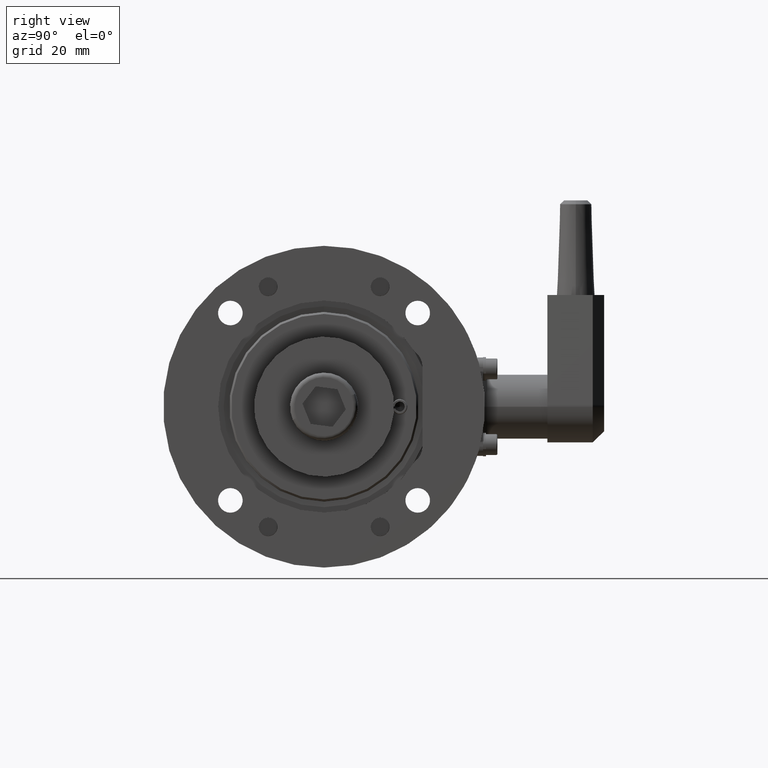
[diagram: clean part render]
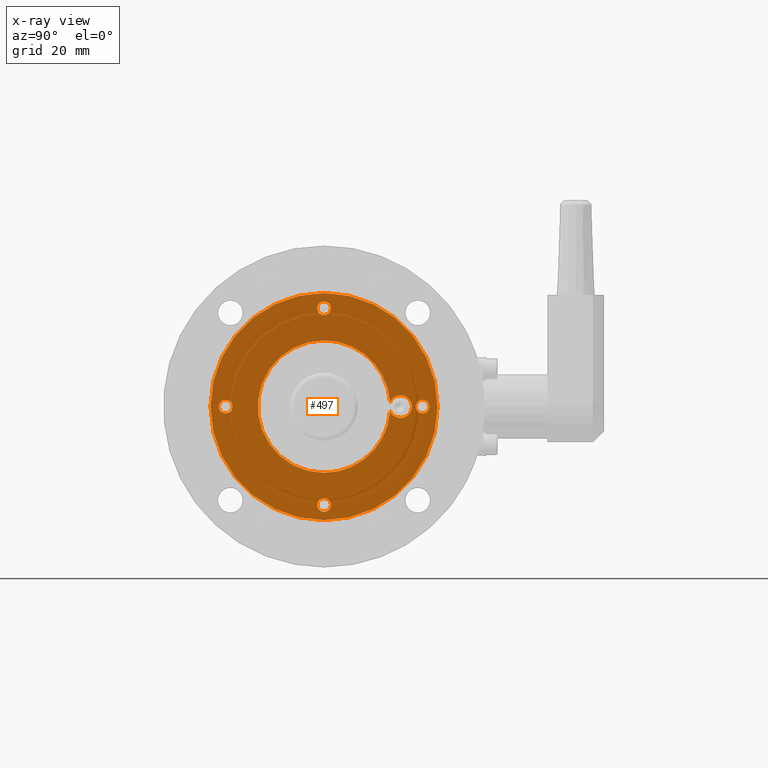
[diagram: x-ray — body ghosted, one internal face saturated and labeled with its STEP entity id]
A machine part, right view, then the same camera in x-ray: the body is ghosted and one INTERNAL B-rep face — a face not visible from any outside direction — is saturated and labeled: STEP entity #497.
In plain terms, the highlighted planar face has unit normal (1, 0, 0).
Its self-contained STEP definition (entity closure, byte-faithful):
#35 = DIRECTION ( 'NONE',  ( 0.000000000000000000, 0.000000000000000000, -1.000000000000000000 ) ) ;
#148 = ORIENTED_EDGE ( 'NONE', *, *, #18148, .T. ) ;
#186 = CARTESIAN_POINT ( 'NONE',  ( 0.000000000000000000, 17.50000000000000000, 0.000000000000000000 ) ) ;
#430 = DIRECTION ( 'NONE',  ( 0.000000000000000000, 0.000000000000000000, 1.000000000000000000 ) ) ;
#489 = VERTEX_POINT ( 'NONE', #9639 ) ;
#497 = ADVANCED_FACE ( 'NONE', ( #3996, #5245, #15908, #17128, #19366, #15167 ), #4779, .F. ) ;
#606 = CIRCLE ( 'NONE', #5256, 2.999999999999999112 ) ;
#640 = CARTESIAN_POINT ( 'NONE',  ( 0.000000000000000000, -26.00000000000000355, 0.000000000000000000 ) ) ;
#722 = ORIENTED_EDGE ( 'NONE', *, *, #19125, .F. ) ;
#994 = CARTESIAN_POINT ( 'NONE',  ( 0.000000000000000000, 2.143131898507868248E-15, -17.50000000000000000 ) ) ;
#1165 = EDGE_LOOP ( 'NONE', ( #14066, #14082 ) ) ;
#1253 = AXIS2_PLACEMENT_3D ( 'NONE', #5867, #4471, #11012 ) ;
#1288 = CARTESIAN_POINT ( 'NONE',  ( 0.000000000000000000, 20.19570283221615981, 0.000000000000000000 ) ) ;
#1314 = CARTESIAN_POINT ( 'NONE',  ( 0.000000000000000000, 26.00000000000000355, 0.000000000000000000 ) ) ;
#1500 = CARTESIAN_POINT ( 'NONE',  ( 0.000000000000000000, 26.00000000000000355, 0.000000000000000000 ) ) ;
#1726 = DIRECTION ( 'NONE',  ( 0.000000000000000000, 0.000000000000000000, -1.000000000000000000 ) ) ;
#1731 = AXIS2_PLACEMENT_3D ( 'NONE', #12156, #10340, #10621 ) ;
#1809 = AXIS2_PLACEMENT_3D ( 'NONE', #1500, #18991, #35 ) ;
#2247 = DIRECTION ( 'NONE',  ( 0.000000000000000000, 0.000000000000000000, -1.000000000000000000 ) ) ;
#2281 = AXIS2_PLACEMENT_3D ( 'NONE', #6590, #16215, #1726 ) ;
#2416 = CARTESIAN_POINT ( 'NONE',  ( 0.000000000000000000, 26.00000000000000355, 1.799999999999999600 ) ) ;
#2501 = CIRCLE ( 'NONE', #11639, 30.00000000000000000 ) ;
#2682 = VERTEX_POINT ( 'NONE', #20534 ) ;
#2931 = DIRECTION ( 'NONE',  ( 0.000000000000000000, 0.000000000000000000, 1.000000000000000000 ) ) ;
#2981 = EDGE_CURVE ( 'NONE', #9560, #489, #20022, .T. ) ;
#3113 = CIRCLE ( 'NONE', #8897, 1.799999999999999600 ) ;
#3540 = ORIENTED_EDGE ( 'NONE', *, *, #11018, .T. ) ;
#3607 = DIRECTION ( 'NONE',  ( 1.000000000000000000, -0.000000000000000000, -0.000000000000000000 ) ) ;
#3647 = EDGE_CURVE ( 'NONE', #8325, #7480, #11370, .T. ) ;
#3970 = DIRECTION ( 'NONE',  ( 0.000000000000000000, 0.000000000000000000, 1.000000000000000000 ) ) ;
#3996 = FACE_OUTER_BOUND ( 'NONE', #10942, .T. ) ;
#4257 = CARTESIAN_POINT ( 'NONE',  ( 0.000000000000000000, 17.45709022224231788, 1.224745268409818566 ) ) ;
#4409 = ORIENTED_EDGE ( 'NONE', *, *, #14678, .T. ) ;
#4471 = DIRECTION ( 'NONE',  ( 1.000000000000000000, -0.000000000000000000, -0.000000000000000000 ) ) ;
#4485 = CARTESIAN_POINT ( 'NONE',  ( 0.000000000000000000, 0.000000000000000000, 0.000000000000000000 ) ) ;
#4721 = AXIS2_PLACEMENT_3D ( 'NONE', #1314, #9292, #12451 ) ;
#4779 = PLANE ( 'NONE',  #17757 ) ;
#4795 = AXIS2_PLACEMENT_3D ( 'NONE', #11723, #3607, #2247 ) ;
#4838 = DIRECTION ( 'NONE',  ( 1.000000000000000000, 0.000000000000000000, 0.000000000000000000 ) ) ;
#4864 = AXIS2_PLACEMENT_3D ( 'NONE', #5266, #19597, #19450 ) ;
#5076 = DIRECTION ( 'NONE',  ( -1.000000000000000000, -0.000000000000000000, -0.000000000000000000 ) ) ;
#5102 = DIRECTION ( 'NONE',  ( -1.000000000000000000, -0.000000000000000000, -0.000000000000000000 ) ) ;
#5143 = CIRCLE ( 'NONE', #1809, 1.799999999999999600 ) ;
#5245 = FACE_BOUND ( 'NONE', #1165, .T. ) ;
#5256 = AXIS2_PLACEMENT_3D ( 'NONE', #7852, #15737, #6327 ) ;
#5266 = CARTESIAN_POINT ( 'NONE',  ( 0.000000000000000000, 0.000000000000000000, 0.000000000000000000 ) ) ;
#5297 = ORIENTED_EDGE ( 'NONE', *, *, #6760, .F. ) ;
#5318 = EDGE_CURVE ( 'NONE', #12058, #7541, #5812, .T. ) ;
#5377 = EDGE_CURVE ( 'NONE', #13000, #15594, #9529, .T. ) ;
#5437 = DIRECTION ( 'NONE',  ( 0.000000000000000000, 0.000000000000000000, -1.000000000000000000 ) ) ;
#5812 = CIRCLE ( 'NONE', #17320, 2.999999999999999112 ) ;
#5867 = CARTESIAN_POINT ( 'NONE',  ( 0.000000000000000000, 0.000000000000000000, -26.00000000000000355 ) ) ;
#6129 = CIRCLE ( 'NONE', #4795, 1.799999999999999600 ) ;
#6327 = DIRECTION ( 'NONE',  ( 0.000000000000000000, 0.000000000000000000, 1.000000000000000000 ) ) ;
#6590 = CARTESIAN_POINT ( 'NONE',  ( 0.000000000000000000, 0.000000000000000000, -26.00000000000000355 ) ) ;
#6760 = EDGE_CURVE ( 'NONE', #9354, #9564, #9991, .T. ) ;
#7396 = CARTESIAN_POINT ( 'NONE',  ( 0.000000000000000000, -26.00000000000000355, -1.799999999999999600 ) ) ;
#7438 = AXIS2_PLACEMENT_3D ( 'NONE', #1288, #7690, #15707 ) ;
#7480 = VERTEX_POINT ( 'NONE', #12391 ) ;
#7541 = VERTEX_POINT ( 'NONE', #12732 ) ;
#7664 = CIRCLE ( 'NONE', #2281, 1.799999999999999600 ) ;
#7690 = DIRECTION ( 'NONE',  ( -1.000000000000000000, -0.000000000000000000, -0.000000000000000000 ) ) ;
#7852 = CARTESIAN_POINT ( 'NONE',  ( 0.000000000000000000, 20.19570283221615981, 0.000000000000000000 ) ) ;
#7854 = CIRCLE ( 'NONE', #1731, 17.50000000000000000 ) ;
#7863 = DIRECTION ( 'NONE',  ( 0.000000000000000000, 0.000000000000000000, -1.000000000000000000 ) ) ;
#7939 = ORIENTED_EDGE ( 'NONE', *, *, #10451, .T. ) ;
#7943 = EDGE_CURVE ( 'NONE', #7541, #11349, #20076, .T. ) ;
#7951 = CIRCLE ( 'NONE', #4721, 1.799999999999999600 ) ;
#8105 = DIRECTION ( 'NONE',  ( 0.000000000000000000, 0.000000000000000000, -1.000000000000000000 ) ) ;
#8240 = CARTESIAN_POINT ( 'NONE',  ( 0.000000000000000000, 20.19570283221615981, 2.999999999999999112 ) ) ;
#8325 = VERTEX_POINT ( 'NONE', #20140 ) ;
#8423 = EDGE_CURVE ( 'NONE', #15132, #13563, #7951, .T. ) ;
#8703 = DIRECTION ( 'NONE',  ( 0.000000000000000000, 0.000000000000000000, -1.000000000000000000 ) ) ;
#8897 = AXIS2_PLACEMENT_3D ( 'NONE', #19039, #14086, #7863 ) ;
#9037 = ORIENTED_EDGE ( 'NONE', *, *, #8423, .T. ) ;
#9292 = DIRECTION ( 'NONE',  ( 1.000000000000000000, -0.000000000000000000, -0.000000000000000000 ) ) ;
#9354 = VERTEX_POINT ( 'NONE', #16461 ) ;
#9489 = CARTESIAN_POINT ( 'NONE',  ( 0.000000000000000000, 3.673940397442059178E-15, -30.00000000000000000 ) ) ;
#9526 = CARTESIAN_POINT ( 'NONE',  ( 0.000000000000000000, 26.00000000000000355, -1.799999999999999600 ) ) ;
#9529 = CIRCLE ( 'NONE', #14544, 1.799999999999999600 ) ;
#9560 = VERTEX_POINT ( 'NONE', #7396 ) ;
#9564 = VERTEX_POINT ( 'NONE', #4257 ) ;
#9639 = CARTESIAN_POINT ( 'NONE',  ( 0.000000000000000000, -26.00000000000000355, 1.799999999999999600 ) ) ;
#9731 = CIRCLE ( 'NONE', #15710, 17.50000000000000000 ) ;
#9991 = CIRCLE ( 'NONE', #13917, 17.50000000000000000 ) ;
#10302 = CARTESIAN_POINT ( 'NONE',  ( 0.000000000000000000, 0.000000000000000000, 26.00000000000000355 ) ) ;
#10340 = DIRECTION ( 'NONE',  ( -1.000000000000000000, -0.000000000000000000, -0.000000000000000000 ) ) ;
#10451 = EDGE_CURVE ( 'NONE', #13807, #2682, #15833, .T. ) ;
#10616 = ORIENTED_EDGE ( 'NONE', *, *, #3647, .T. ) ;
#10621 = DIRECTION ( 'NONE',  ( 0.000000000000000000, 0.000000000000000000, 1.000000000000000000 ) ) ;
#10942 = EDGE_LOOP ( 'NONE', ( #4409, #7939 ) ) ;
#11012 = DIRECTION ( 'NONE',  ( 0.000000000000000000, 0.000000000000000000, -1.000000000000000000 ) ) ;
#11018 = EDGE_CURVE ( 'NONE', #13563, #15132, #5143, .T. ) ;
#11212 = EDGE_CURVE ( 'NONE', #489, #9560, #3113, .T. ) ;
#11349 = VERTEX_POINT ( 'NONE', #12932 ) ;
#11370 = CIRCLE ( 'NONE', #1253, 1.799999999999999600 ) ;
#11473 = EDGE_LOOP ( 'NONE', ( #9037, #3540 ) ) ;
#11521 = CARTESIAN_POINT ( 'NONE',  ( 0.000000000000000000, 0.000000000000000000, 0.000000000000000000 ) ) ;
#11631 = EDGE_CURVE ( 'NONE', #11349, #16817, #7854, .T. ) ;
#11639 = AXIS2_PLACEMENT_3D ( 'NONE', #17737, #5076, #430 ) ;
#11723 = CARTESIAN_POINT ( 'NONE',  ( 0.000000000000000000, 0.000000000000000000, 26.00000000000000355 ) ) ;
#11779 = CARTESIAN_POINT ( 'NONE',  ( 0.000000000000000000, 20.19570283221615981, 0.000000000000000000 ) ) ;
#12058 = VERTEX_POINT ( 'NONE', #8240 ) ;
#12156 = CARTESIAN_POINT ( 'NONE',  ( 0.000000000000000000, 0.000000000000000000, 0.000000000000000000 ) ) ;
#12391 = CARTESIAN_POINT ( 'NONE',  ( 0.000000000000000000, 2.204364238465233111E-16, -24.20000000000000284 ) ) ;
#12402 = ORIENTED_EDGE ( 'NONE', *, *, #7943, .F. ) ;
#12451 = DIRECTION ( 'NONE',  ( 0.000000000000000000, 0.000000000000000000, -1.000000000000000000 ) ) ;
#12732 = CARTESIAN_POINT ( 'NONE',  ( 0.000000000000000000, 20.19570283221615981, -2.999999999999999112 ) ) ;
#12932 = CARTESIAN_POINT ( 'NONE',  ( 0.000000000000000000, 17.45709022224230722, -1.224745268409795917 ) ) ;
#13000 = VERTEX_POINT ( 'NONE', #13943 ) ;
#13214 = EDGE_CURVE ( 'NONE', #7480, #8325, #7664, .T. ) ;
#13563 = VERTEX_POINT ( 'NONE', #2416 ) ;
#13732 = EDGE_CURVE ( 'NONE', #16817, #9354, #9731, .T. ) ;
#13807 = VERTEX_POINT ( 'NONE', #9489 ) ;
#13917 = AXIS2_PLACEMENT_3D ( 'NONE', #4485, #15561, #2931 ) ;
#13943 = CARTESIAN_POINT ( 'NONE',  ( 0.000000000000000000, 0.000000000000000000, 24.20000000000000284 ) ) ;
#14066 = ORIENTED_EDGE ( 'NONE', *, *, #2981, .T. ) ;
#14082 = ORIENTED_EDGE ( 'NONE', *, *, #11212, .T. ) ;
#14086 = DIRECTION ( 'NONE',  ( 1.000000000000000000, -0.000000000000000000, -0.000000000000000000 ) ) ;
#14121 = EDGE_LOOP ( 'NONE', ( #10616, #20533 ) ) ;
#14238 = AXIS2_PLACEMENT_3D ( 'NONE', #640, #18207, #5437 ) ;
#14544 = AXIS2_PLACEMENT_3D ( 'NONE', #10302, #14993, #8703 ) ;
#14678 = EDGE_CURVE ( 'NONE', #2682, #13807, #2501, .T. ) ;
#14809 = ORIENTED_EDGE ( 'NONE', *, *, #13732, .F. ) ;
#14993 = DIRECTION ( 'NONE',  ( 1.000000000000000000, -0.000000000000000000, -0.000000000000000000 ) ) ;
#15132 = VERTEX_POINT ( 'NONE', #9526 ) ;
#15167 = FACE_BOUND ( 'NONE', #19165, .T. ) ;
#15561 = DIRECTION ( 'NONE',  ( -1.000000000000000000, -0.000000000000000000, -0.000000000000000000 ) ) ;
#15594 = VERTEX_POINT ( 'NONE', #20138 ) ;
#15707 = DIRECTION ( 'NONE',  ( 0.000000000000000000, 0.000000000000000000, 1.000000000000000000 ) ) ;
#15710 = AXIS2_PLACEMENT_3D ( 'NONE', #11521, #5102, #17398 ) ;
#15737 = DIRECTION ( 'NONE',  ( -1.000000000000000000, -0.000000000000000000, -0.000000000000000000 ) ) ;
#15757 = ORIENTED_EDGE ( 'NONE', *, *, #11631, .F. ) ;
#15833 = CIRCLE ( 'NONE', #4864, 30.00000000000000000 ) ;
#15908 = FACE_BOUND ( 'NONE', #14121, .T. ) ;
#16215 = DIRECTION ( 'NONE',  ( 1.000000000000000000, -0.000000000000000000, -0.000000000000000000 ) ) ;
#16461 = CARTESIAN_POINT ( 'NONE',  ( 0.000000000000000000, 0.000000000000000000, 17.50000000000000000 ) ) ;
#16817 = VERTEX_POINT ( 'NONE', #994 ) ;
#16874 = EDGE_LOOP ( 'NONE', ( #20274, #148 ) ) ;
#17128 = FACE_BOUND ( 'NONE', #11473, .T. ) ;
#17320 = AXIS2_PLACEMENT_3D ( 'NONE', #11779, #19836, #3970 ) ;
#17398 = DIRECTION ( 'NONE',  ( 0.000000000000000000, 0.000000000000000000, 1.000000000000000000 ) ) ;
#17737 = CARTESIAN_POINT ( 'NONE',  ( 0.000000000000000000, 0.000000000000000000, 0.000000000000000000 ) ) ;
#17757 = AXIS2_PLACEMENT_3D ( 'NONE', #186, #4838, #8105 ) ;
#18148 = EDGE_CURVE ( 'NONE', #15594, #13000, #6129, .T. ) ;
#18207 = DIRECTION ( 'NONE',  ( 1.000000000000000000, -0.000000000000000000, -0.000000000000000000 ) ) ;
#18991 = DIRECTION ( 'NONE',  ( 1.000000000000000000, -0.000000000000000000, -0.000000000000000000 ) ) ;
#19039 = CARTESIAN_POINT ( 'NONE',  ( 0.000000000000000000, -26.00000000000000355, 0.000000000000000000 ) ) ;
#19125 = EDGE_CURVE ( 'NONE', #9564, #12058, #606, .T. ) ;
#19165 = EDGE_LOOP ( 'NONE', ( #722, #5297, #14809, #15757, #12402, #20207 ) ) ;
#19366 = FACE_BOUND ( 'NONE', #16874, .T. ) ;
#19450 = DIRECTION ( 'NONE',  ( 0.000000000000000000, 0.000000000000000000, 1.000000000000000000 ) ) ;
#19597 = DIRECTION ( 'NONE',  ( -1.000000000000000000, -0.000000000000000000, -0.000000000000000000 ) ) ;
#19836 = DIRECTION ( 'NONE',  ( -1.000000000000000000, -0.000000000000000000, -0.000000000000000000 ) ) ;
#20022 = CIRCLE ( 'NONE', #14238, 1.799999999999999600 ) ;
#20076 = CIRCLE ( 'NONE', #7438, 2.999999999999999112 ) ;
#20138 = CARTESIAN_POINT ( 'NONE',  ( 0.000000000000000000, 2.204364238465233111E-16, 27.80000000000000071 ) ) ;
#20140 = CARTESIAN_POINT ( 'NONE',  ( 0.000000000000000000, 0.000000000000000000, -27.80000000000000071 ) ) ;
#20207 = ORIENTED_EDGE ( 'NONE', *, *, #5318, .F. ) ;
#20274 = ORIENTED_EDGE ( 'NONE', *, *, #5377, .T. ) ;
#20533 = ORIENTED_EDGE ( 'NONE', *, *, #13214, .T. ) ;
#20534 = CARTESIAN_POINT ( 'NONE',  ( 0.000000000000000000, 0.000000000000000000, 30.00000000000000000 ) ) ;